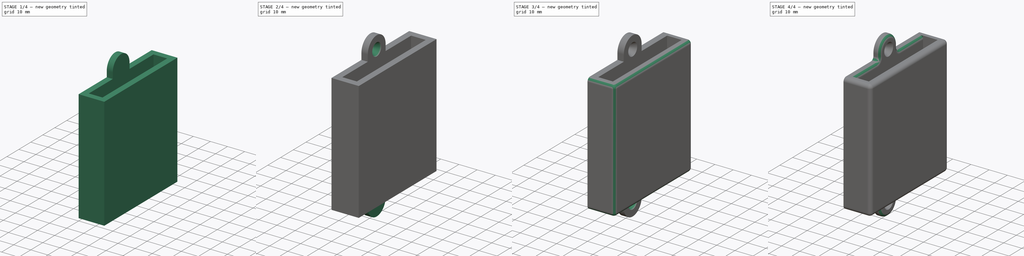
[diagram: build sequence overview — one tinted view per stage of 4, left to right]
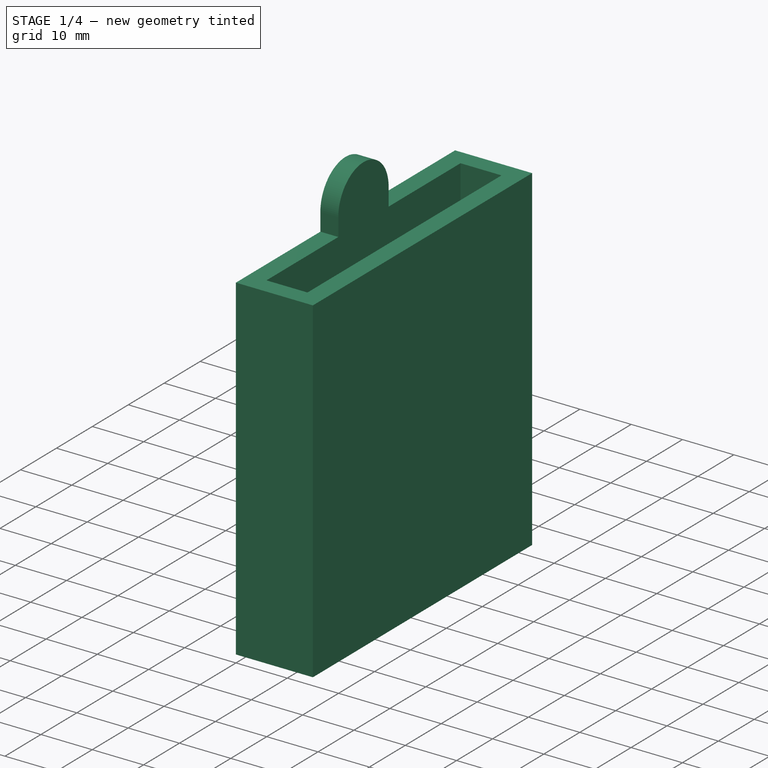
[diagram: stage 1 of 4 — iso view after this stage's code; geometry added in this stage tinted green]
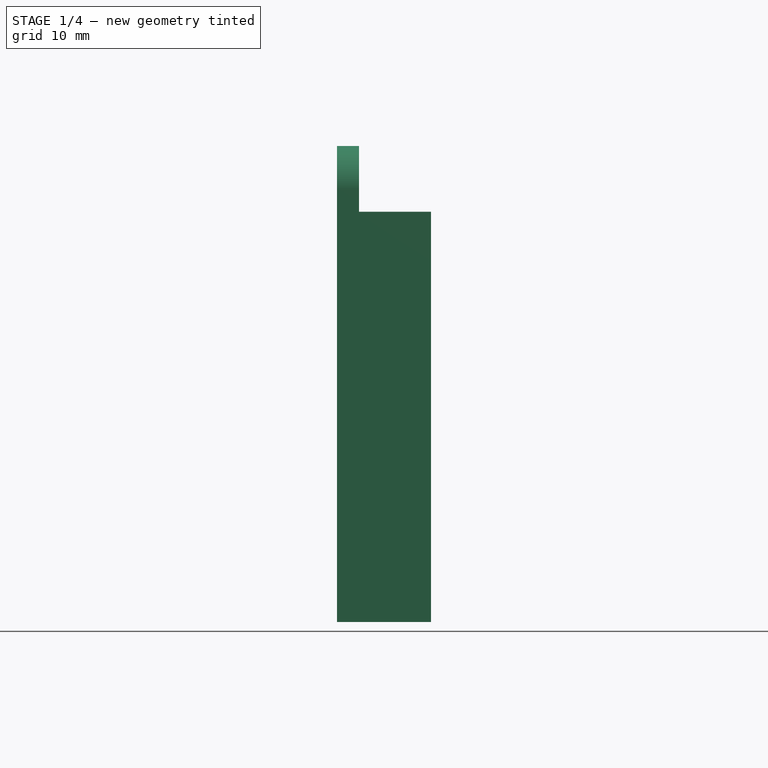
[diagram: stage 1 of 4 — front view after this stage's code; geometry added in this stage tinted green]
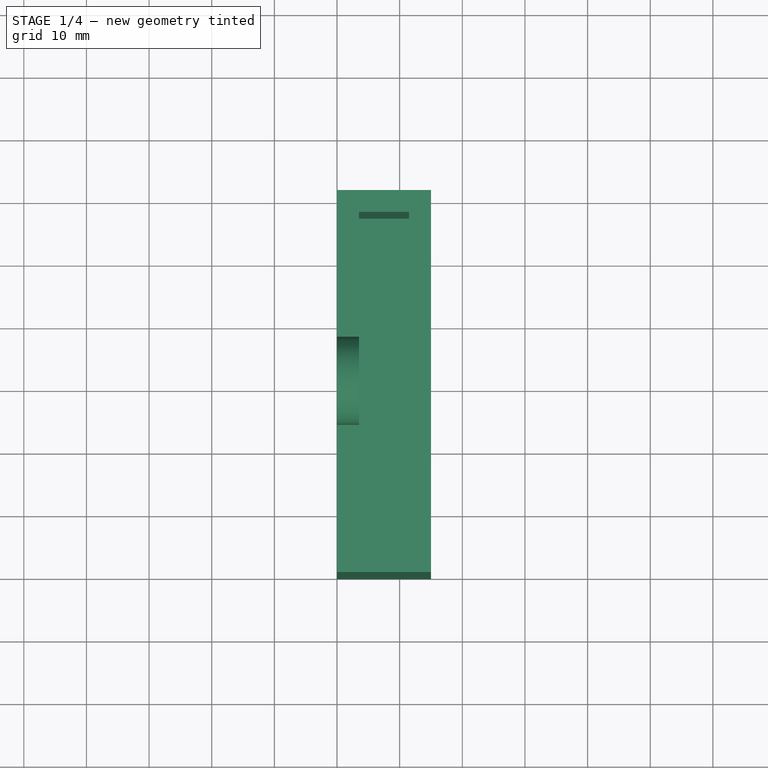
[diagram: stage 1 of 4 — top view after this stage's code; geometry added in this stage tinted green]
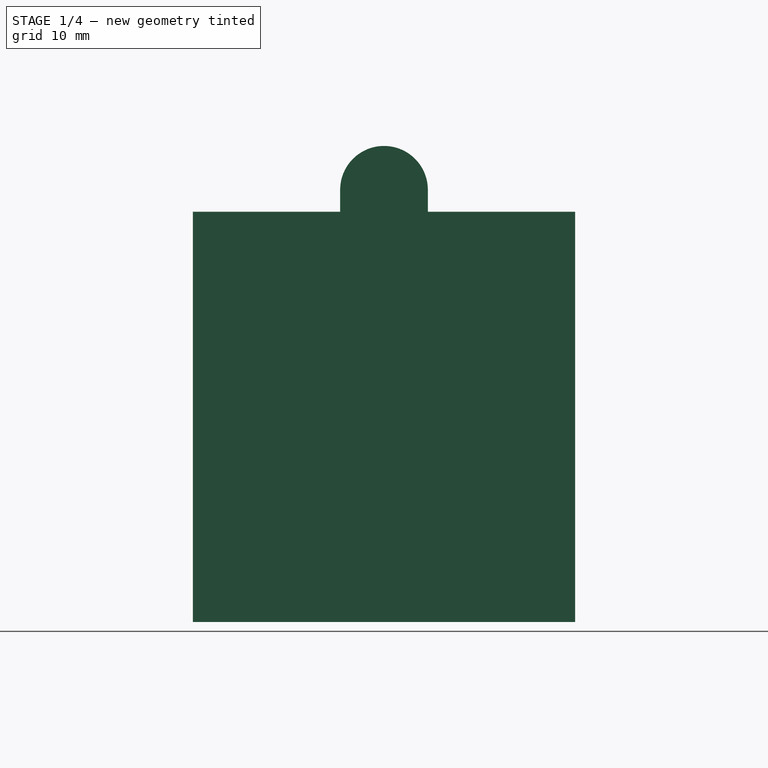
[diagram: stage 1 of 4 — right view after this stage's code; geometry added in this stage tinted green]
FCSTD DOCUMENT  (FreeCAD 0.21R33668 +7 (Git))
Label: LedRemoteHolder
License: All rights reserved
LicenseURL: http://en.wikipedia.org/wiki/All_rights_reserved
objects: PartDesign::Fillet×6, Sketcher::SketchObject×4, PartDesign::AdditiveBox×3, PartDesign::AdditiveCylinder×2, PartDesign::SubtractiveLoft×2, Spreadsheet::Sheet×1, PartDesign::SubtractiveBox×1, PartDesign::Body×1
note: 33 computed .brp shape members not serialized (recipe doc carries the construction recipe); baked Part::Feature solids carry a one-line shape summary decoded from their .brp

FEATURE [Spreadsheet::Sheet] Spreadsheet
  cells = A1='Width; B1(Width)=54; A2='Height; B2(Height)=62; A3='Depth; B3(Depth)=8; A4='Walls; B4(Walls)=3.5; A5='Screw inner diam; B5(ScrewInner)=3; A6='Screw outer diam; B6(ScrewOuter)=7
FEATURE [PartDesign::AdditiveBox] Box
  AttacherType = Attacher::AttachEngine3D
  Height = 65.5
  Length = 15
  Width = 61
  expr: Height = Spreadsheet.Height + Spreadsheet.Walls
  expr: Length = Spreadsheet.Depth + 2 * Spreadsheet.Walls
  expr: Width = Spreadsheet.Width + 2 * Spreadsheet.Walls
FEATURE [PartDesign::SubtractiveBox] Box001
  AttacherType = Attacher::AttachEngine3D
  AttachmentOffset = pos=(3.5,3.5,3.5) rot=(0,0,1;0rad)
  BaseFeature = -> Box
  Height = 62
  Length = 8
  MapMode = 5
  Placement = pos=(3.5,3.5,3.5) rot=(0,0,1;0rad)
  Support = -> [XY_Plane]
  Width = 54
  expr: .AttachmentOffset.Base.x = Spreadsheet.Walls
  expr: .AttachmentOffset.Base.y = Spreadsheet.Walls
  expr: .AttachmentOffset.Base.z = Spreadsheet.Walls
  expr: Height = Spreadsheet.Height
  expr: Length = Spreadsheet.Depth
  expr: Width = Spreadsheet.Width
FEATURE [PartDesign::AdditiveBox] Box002
  AttacherType = Attacher::AttachEngine3D
  AttachmentOffset = pos=(0,23.5,65.5) rot=(0,0,1;0rad)
  BaseFeature = -> Box001
  Height = 3.5
  Length = 3.5
  MapMode = 5
  Placement = pos=(0,23.5,65.5) rot=(0,0,1;0rad)
  Support = -> [XY_Plane]
  Width = 14
  expr: .AttachmentOffset.Base.y = Spreadsheet.Width / 2 - Spreadsheet.ScrewOuter / 2
  expr: .AttachmentOffset.Base.z = Spreadsheet.Height + Spreadsheet.Walls
  expr: Height = Spreadsheet.ScrewOuter / 2
  expr: Length = Spreadsheet.Walls
  expr: Width = Spreadsheet.ScrewOuter + 2 * Spreadsheet.Walls
FEATURE [PartDesign::AdditiveCylinder] Cylinder
  Angle = 180
  AttacherType = Attacher::AttachEngine3D
  AttachmentOffset = pos=(30.5,69,0) rot=(0,0,1;0rad)
  BaseFeature = -> Box002
  FirstAngle = 0
  Height = 3.5
  MapMode = 5
  Placement = pos=(-8.5e-15,30.5,69) rot=(0.57735,0.57735,0.57735;2.0944rad)
  Radius = 7
  SecondAngle = 0
  Support = -> [YZ_Plane]
  expr: .AttachmentOffset.Base.x = Spreadsheet.Width / 2 + Spreadsheet.Walls
  expr: .AttachmentOffset.Base.y = Spreadsheet.Height + Spreadsheet.Walls + Spreadsheet.ScrewOuter / 2
  expr: Height = Spreadsheet.Walls
  expr: Radius = Spreadsheet.Walls + Spreadsheet.ScrewOuter / 2
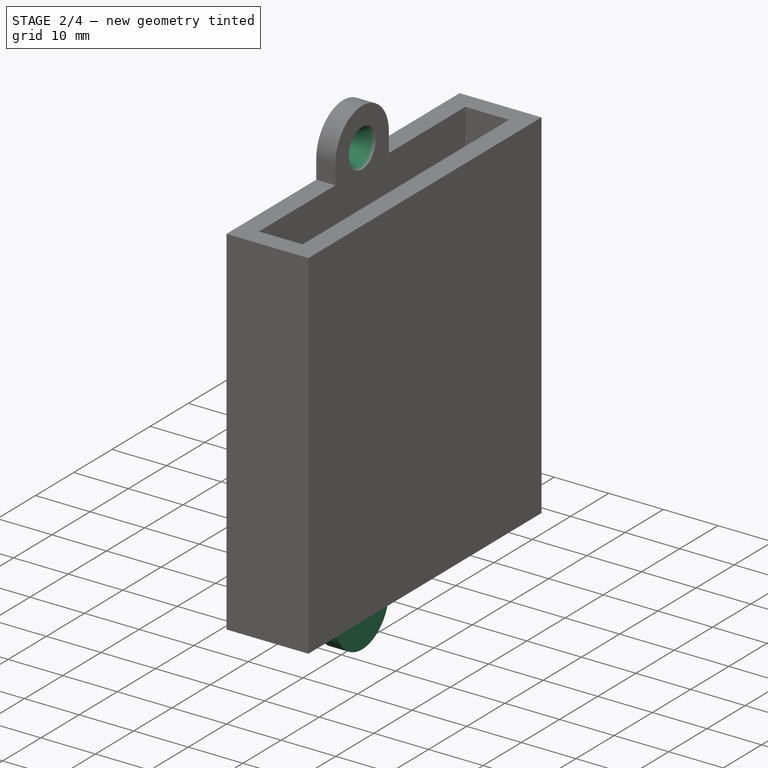
[diagram: stage 2 of 4 — iso view after this stage's code; geometry added in this stage tinted green]
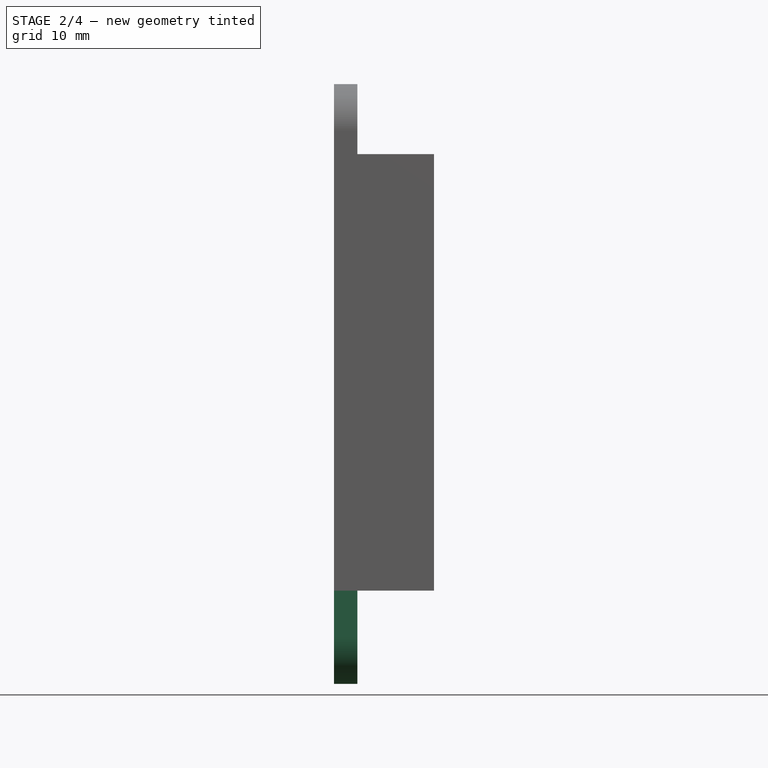
[diagram: stage 2 of 4 — front view after this stage's code; geometry added in this stage tinted green]
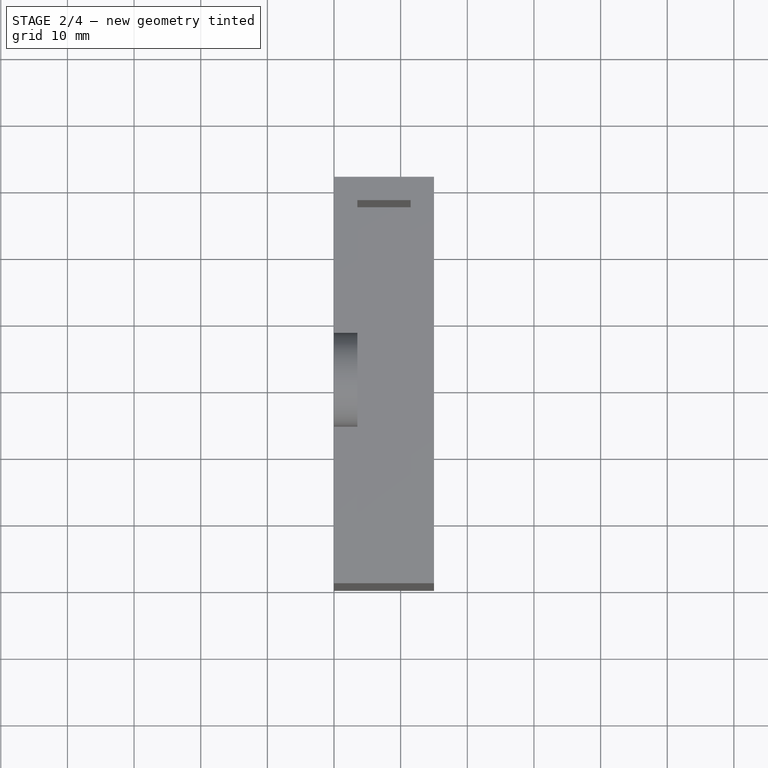
[diagram: stage 2 of 4 — top view after this stage's code; geometry added in this stage tinted green]
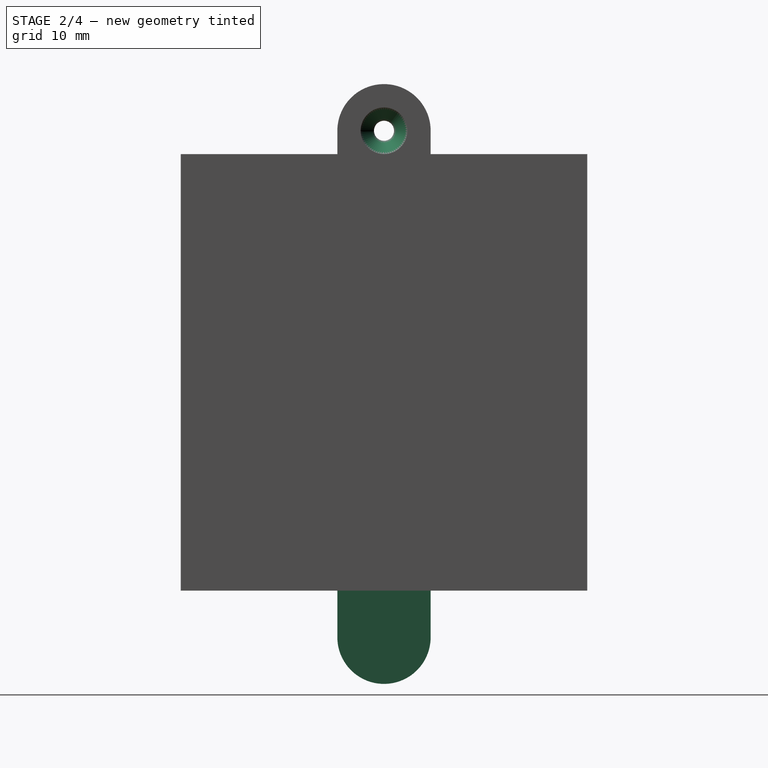
[diagram: stage 2 of 4 — right view after this stage's code; geometry added in this stage tinted green]
FEATURE [Sketcher::SketchObject] Sketch
  FullyConstrained = true
  MapMode = 5
  Placement = pos=(3.5,30.5,69) rot=(0.57735,0.57735,0.57735;2.0944rad)
  Support = -> [Cylinder]
  expr: Constraints[1] = Spreadsheet.ScrewOuter
  sketch-geometry (1):
    g0: Circle CenterX=0 CenterY=0 CenterZ=0 NormalX=0 NormalY=0 NormalZ=1 AngleXU=0 Radius=3.5
  constraints (2):
    c: Coincident(g0,g-1)
    c: Diameter(g0) = 7
FEATURE [Sketcher::SketchObject] Sketch001
  FullyConstrained = true
  MapMode = 5
  Placement = pos=(-8.5e-15,30.5,69) rot=(0.57735,0.57735,-0.57735;4.18879rad)
  Support = -> [Cylinder]
  expr: Constraints[1] = Spreadsheet.ScrewInner
  sketch-geometry (1):
    g0: Circle CenterX=0 CenterY=0 CenterZ=0 NormalX=0 NormalY=0 NormalZ=1 AngleXU=0 Radius=1.5
  constraints (2):
    c: Coincident(g0,g-1)
    c: Diameter(g0) = 3
FEATURE [PartDesign::SubtractiveLoft] SubtractiveLoft
  BaseFeature = -> Cylinder
  Closed = false
  Placement = pos=(-8.5e-15,30.5,69) rot=(0.57735,0.57735,0.57735;2.0944rad)
  Profile = -> Sketch
  Ruled = false
  Sections = -> [Sketch001]
FEATURE [PartDesign::AdditiveBox] Box003
  AttacherType = Attacher::AttachEngine3D
  AttachmentOffset = pos=(0,23.5,-7) rot=(0,0,1;0rad)
  BaseFeature = -> SubtractiveLoft
  Height = 7
  Length = 3.5
  MapMode = 5
  Placement = pos=(0,23.5,-7) rot=(0,0,1;0rad)
  Support = -> [XY_Plane]
  Width = 14
  expr: .AttachmentOffset.Base.y = Spreadsheet.Width / 2 - Spreadsheet.ScrewOuter / 2
  expr: .AttachmentOffset.Base.z = -Spreadsheet.ScrewOuter
  expr: Height = Spreadsheet.ScrewOuter
  expr: Length = Spreadsheet.Walls
  expr: Width = Spreadsheet.ScrewOuter + 2 * Spreadsheet.Walls
FEATURE [PartDesign::AdditiveCylinder] Cylinder001
  Angle = 180
  AttacherType = Attacher::AttachEngine3D
  AttachmentOffset = pos=(30.5,-7,0) rot=(0,0,1;3.14159rad)
  BaseFeature = -> Box003
  FirstAngle = 0
  Height = 3.5
  MapMode = 5
  Placement = pos=(8.3e-15,30.5,-7) rot=(0.57735,-0.57735,0.57735;4.18879rad)
  Radius = 7
  SecondAngle = 0
  Support = -> [YZ_Plane]
  expr: .AttachmentOffset.Base.x = Spreadsheet.Width / 2 + Spreadsheet.Walls
  expr: .AttachmentOffset.Base.y = -Spreadsheet.ScrewOuter
  expr: Height = Spreadsheet.Walls
  expr: Radius = Spreadsheet.ScrewOuter / 2 + Spreadsheet.Walls
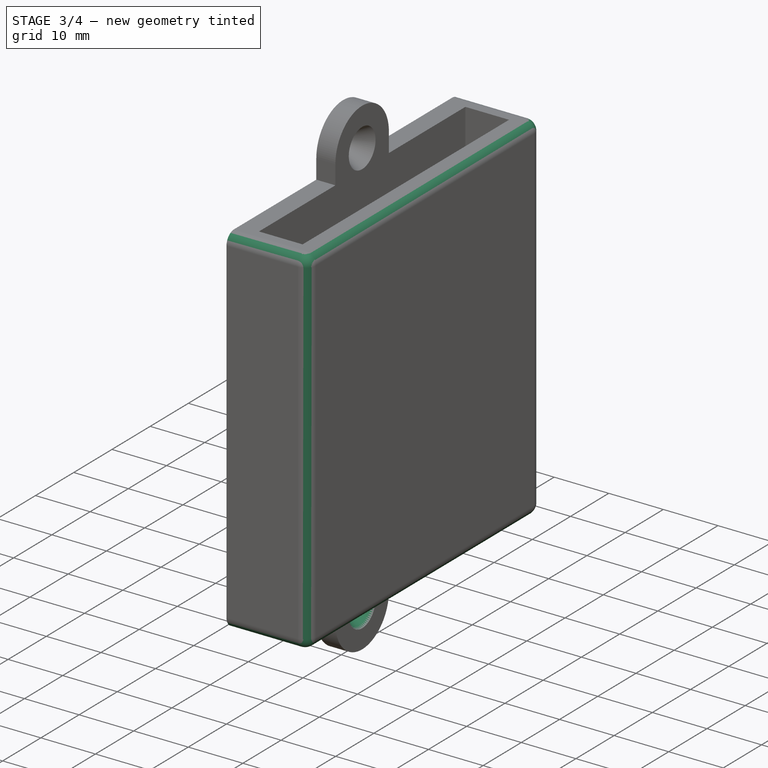
[diagram: stage 3 of 4 — iso view after this stage's code; geometry added in this stage tinted green]
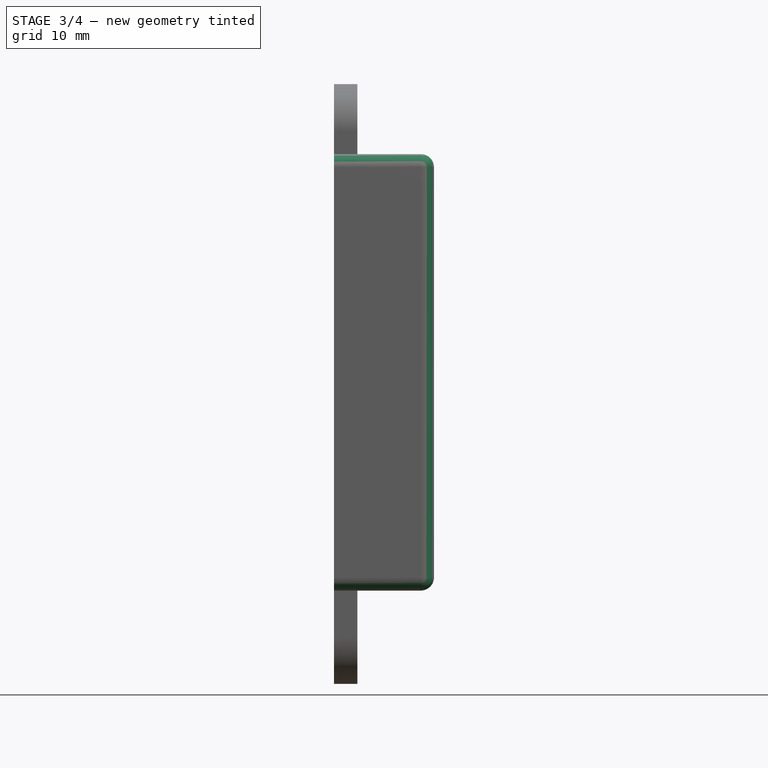
[diagram: stage 3 of 4 — front view after this stage's code; geometry added in this stage tinted green]
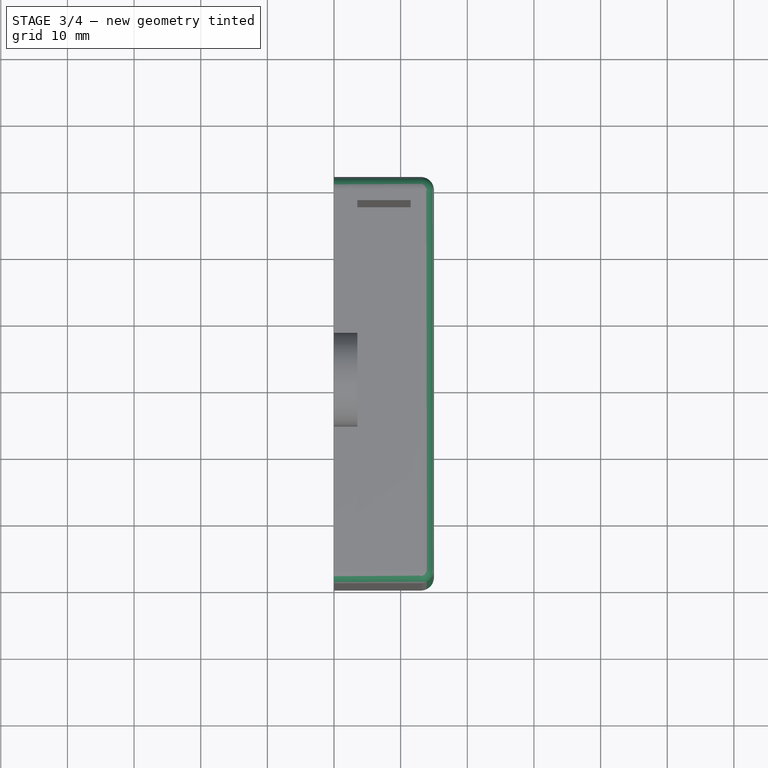
[diagram: stage 3 of 4 — top view after this stage's code; geometry added in this stage tinted green]
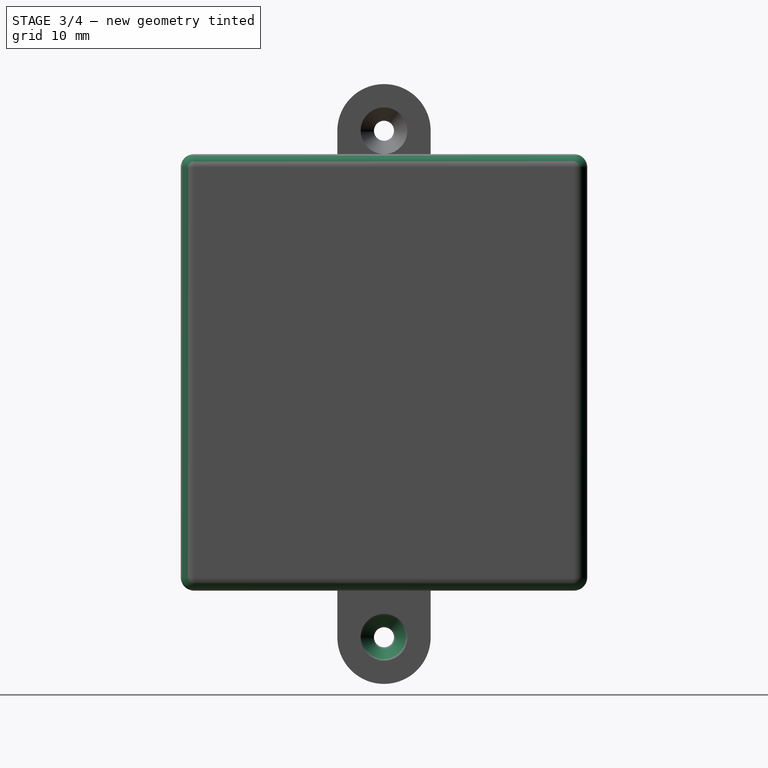
[diagram: stage 3 of 4 — right view after this stage's code; geometry added in this stage tinted green]
FEATURE [Sketcher::SketchObject] Sketch002
  FullyConstrained = true
  MapMode = 5
  Placement = pos=(3.5,30.5,-7) rot=(0.57735,-0.57735,0.57735;4.18879rad)
  Support = -> [Cylinder001]
  expr: Constraints[1] = Spreadsheet.ScrewOuter
  sketch-geometry (1):
    g0: Circle CenterX=0 CenterY=0 CenterZ=0 NormalX=0 NormalY=0 NormalZ=1 AngleXU=0 Radius=3.5
  constraints (2):
    c: Coincident(g0,g-1)
    c: Diameter(g0) = 7
FEATURE [Sketcher::SketchObject] Sketch003
  FullyConstrained = true
  MapMode = 5
  Placement = pos=(8.3e-15,30.5,-7) rot=(0.57735,-0.57735,-0.57735;2.0944rad)
  Support = -> [Cylinder001]
  expr: Constraints[1] = Spreadsheet.ScrewInner
  sketch-geometry (1):
    g0: Circle CenterX=0 CenterY=0 CenterZ=0 NormalX=0 NormalY=0 NormalZ=1 AngleXU=0 Radius=1.5
  constraints (2):
    c: Coincident(g0,g-1)
    c: Diameter(g0) = 3
FEATURE [PartDesign::SubtractiveLoft] SubtractiveLoft001
  BaseFeature = -> Cylinder001
  Closed = false
  Placement = pos=(8.3e-15,30.5,-7) rot=(0.57735,-0.57735,0.57735;4.18879rad)
  Profile = -> Sketch002
  Ruled = false
  Sections = -> [Sketch003]
FEATURE [PartDesign::Fillet] Fillet
  Base = -> SubtractiveLoft001 [Edge20,Edge10,Edge31,Edge27,Edge19,Edge11,Edge26,Edge9]
  BaseFeature = -> SubtractiveLoft001
  Placement = pos=(8.3e-15,30.5,-7) rot=(0.57735,-0.57735,0.57735;4.18879rad)
  Radius = 2
  SupportTransform = false
  UseAllEdges = false
FEATURE [PartDesign::Fillet] Fillet002
  Base = -> Fillet
  BaseFeature = -> Fillet
  Placement = pos=(8.3e-15,30.5,-7) rot=(0.57735,-0.57735,0.57735;4.18879rad)
  Radius = 2
  SupportTransform = false
  UseAllEdges = false
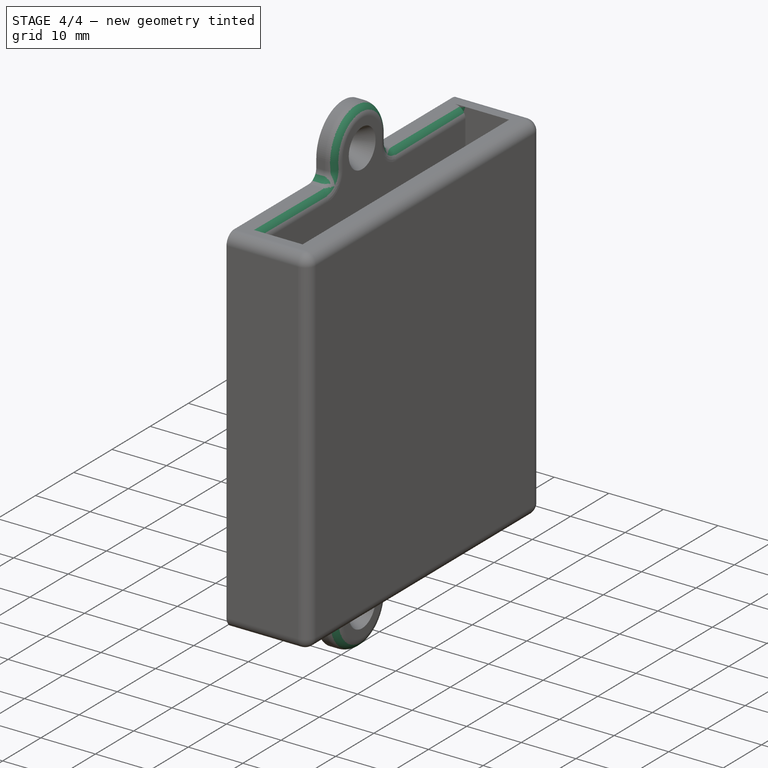
[diagram: stage 4 of 4 — iso view after this stage's code; geometry added in this stage tinted green]
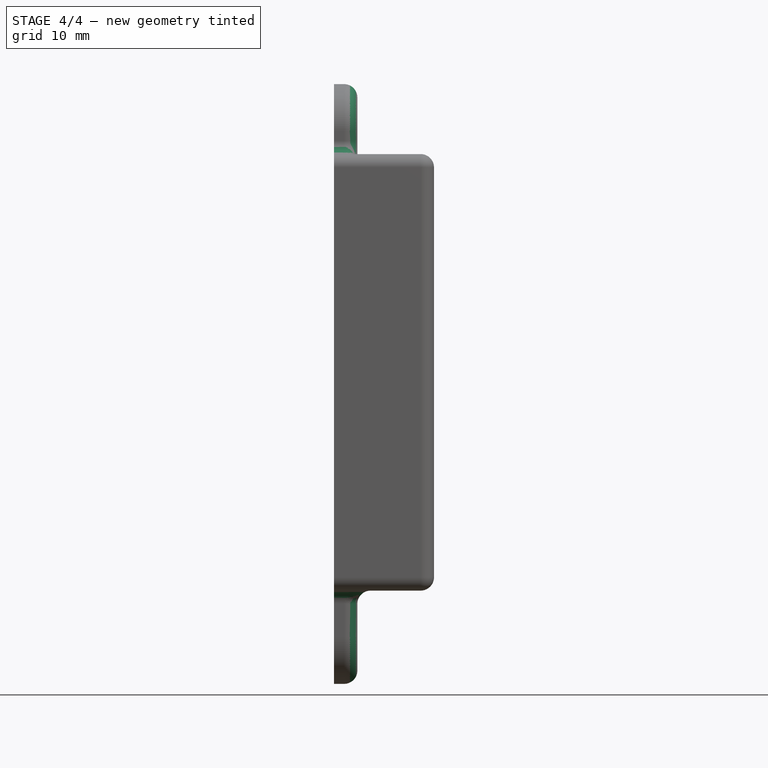
[diagram: stage 4 of 4 — front view after this stage's code; geometry added in this stage tinted green]
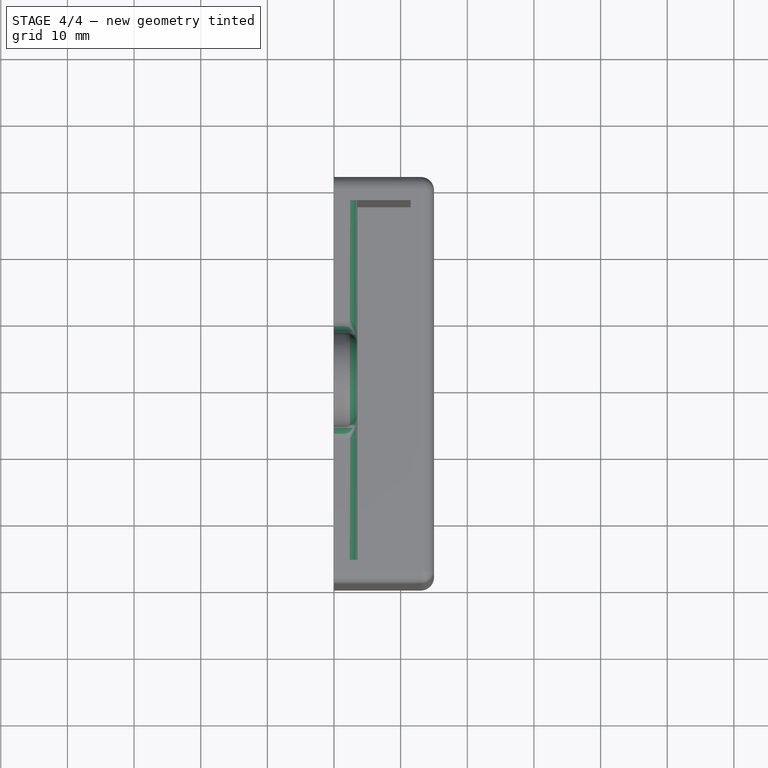
[diagram: stage 4 of 4 — top view after this stage's code; geometry added in this stage tinted green]
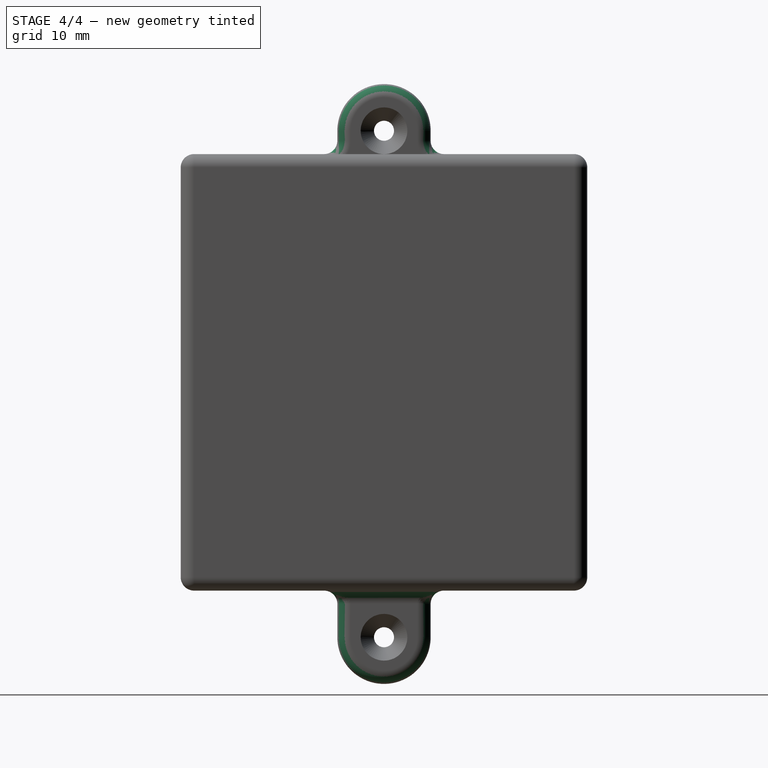
[diagram: stage 4 of 4 — right view after this stage's code; geometry added in this stage tinted green]
FEATURE [PartDesign::Fillet] Fillet003
  Base = -> Fillet002 [Edge20,Edge22,Edge24]
  BaseFeature = -> Fillet002
  Placement = pos=(8.3e-15,30.5,-7) rot=(0.57735,-0.57735,0.57735;4.18879rad)
  Radius = 2
  SupportTransform = false
  UseAllEdges = false
FEATURE [PartDesign::Fillet] Fillet004
  Base = -> Fillet003 [Edge56,Edge68,Edge105,Edge61,Edge54]
  BaseFeature = -> Fillet003
  Placement = pos=(8.3e-15,30.5,-7) rot=(0.57735,-0.57735,0.57735;4.18879rad)
  Radius = 2
  SupportTransform = false
  UseAllEdges = false
FEATURE [PartDesign::Fillet] Fillet005
  Base = -> Fillet004 [Edge73,Edge67]
  BaseFeature = -> Fillet004
  Placement = pos=(8.3e-15,30.5,-7) rot=(0.57735,-0.57735,0.57735;4.18879rad)
  Radius = 2
  SupportTransform = false
  UseAllEdges = false
FEATURE [PartDesign::Fillet] Fillet006
  Base = -> Fillet005 [Edge58,Edge76,Edge117,Edge84,Edge75]
  BaseFeature = -> Fillet005
  Placement = pos=(8.3e-15,30.5,-7) rot=(0.57735,-0.57735,0.57735;4.18879rad)
  Radius = 2
  SupportTransform = false
  UseAllEdges = false
FEATURE [PartDesign::Body] Body  label="RemoteHolder"
  Group = -> [Box,Box001,Box002,Cylinder,Sketch,Sketch001,SubtractiveLoft,Box003,Cylinder001,Sketch002,Sketch003,SubtractiveLoft001,Fillet,Fillet002,Fillet003,Fillet004,Fillet005,Fillet006]
  Origin = -> Origin
  Tip = -> Fillet006
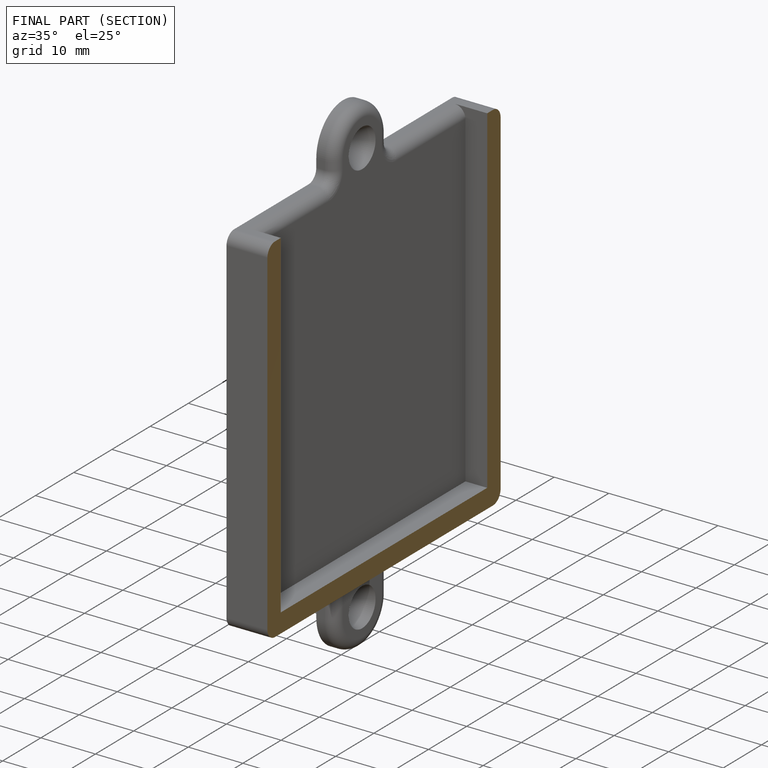
[diagram: finished part — half-section view (interior)]
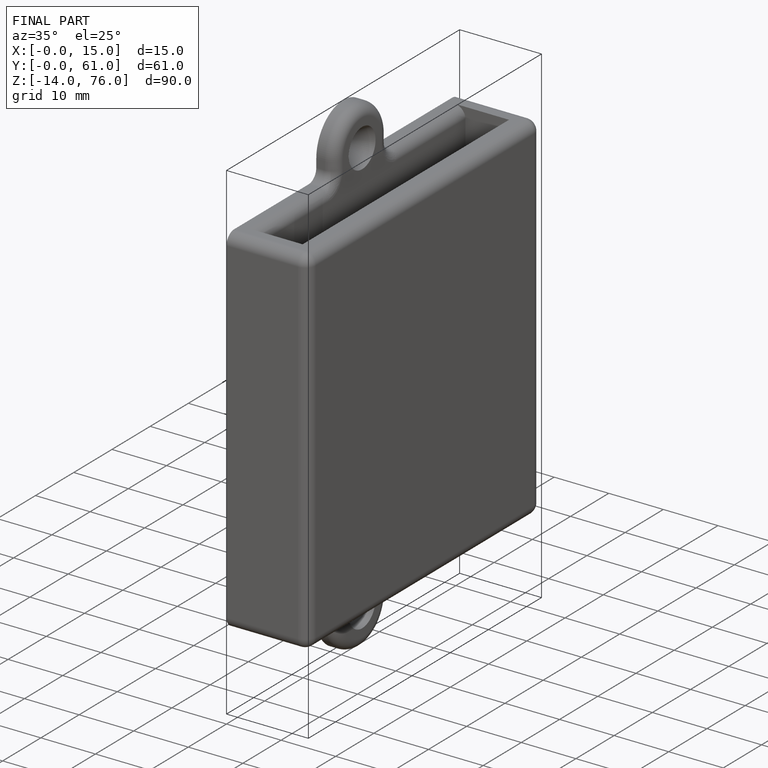
[diagram: finished part — iso view with bounding-box wireframe]
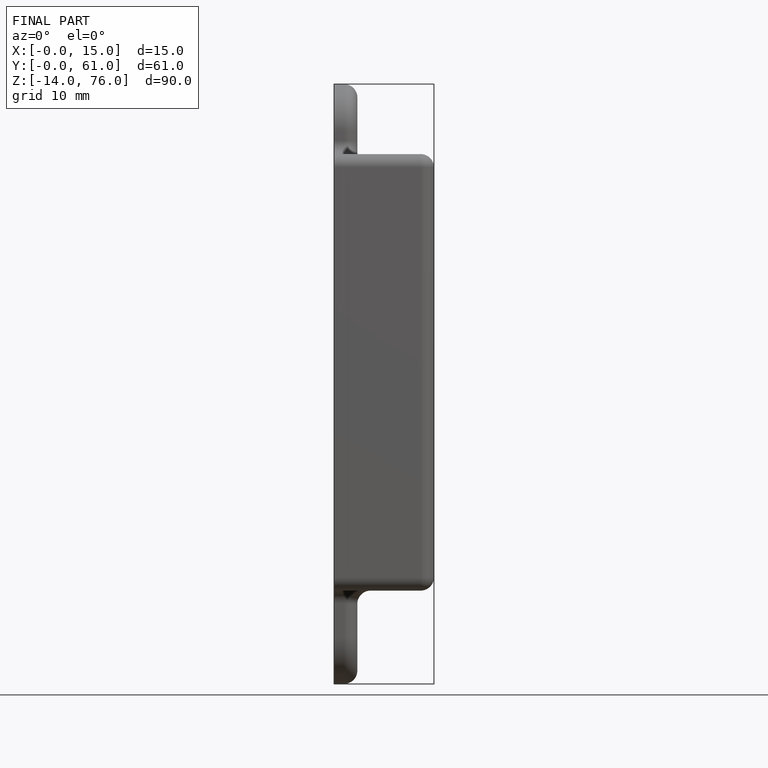
[diagram: finished part — front view with bounding-box wireframe]
